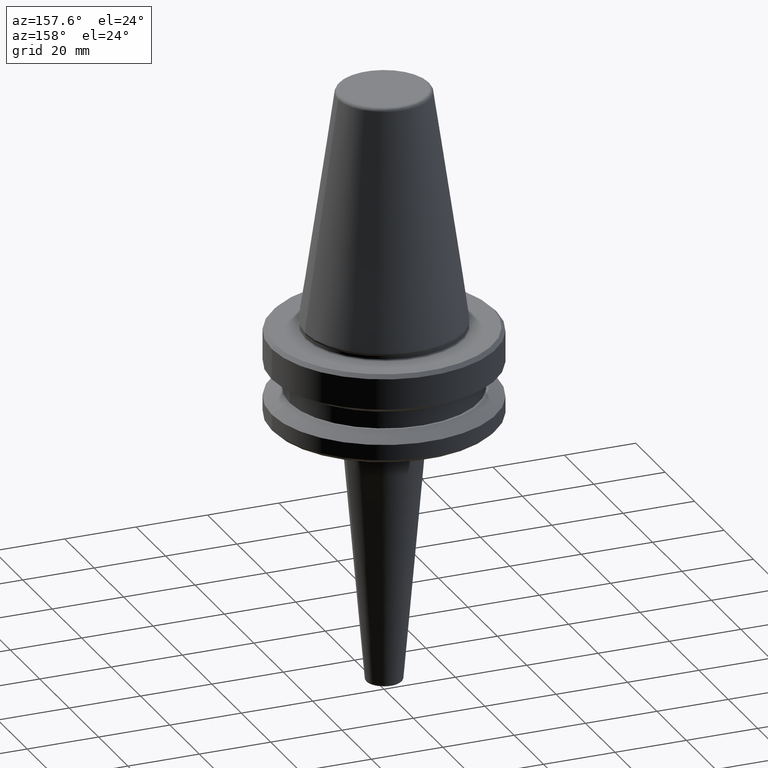
[diagram: clean part render]
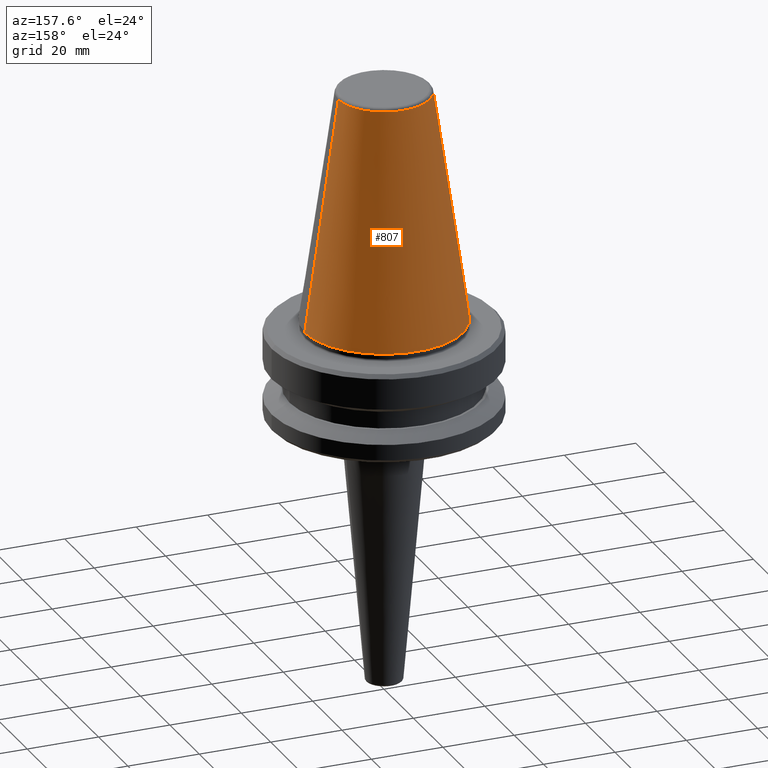
[diagram: same view with one face highlighted and labeled with its STEP entity id]
A machine part, auxiliary view. The second image highlights one B-rep face of the part: STEP entity #807.
In plain terms, the highlighted conical surface has half-angle 8.297 deg.
Its self-contained STEP definition (entity closure, byte-faithful):
#95 = CARTESIAN_POINT ( 'NONE',  ( -12.81220206925736900, 0.0000000000000000000, -0.8556918111122247000 ) ) ;
#120 = CARTESIAN_POINT ( 'NONE',  ( 0.0000000000000000000, 0.0000000000000000000, -0.8556918111122247000 ) ) ;
#169 = ORIENTED_EDGE ( 'NONE', *, *, #229, .T. ) ;
#174 = FACE_OUTER_BOUND ( 'NONE', #700, .T. ) ;
#182 = VERTEX_POINT ( 'NONE', #806 ) ;
#186 = DIRECTION ( 'NONE',  ( 1.000000000000000000, 0.0000000000000000000, 0.0000000000000000000 ) ) ;
#229 = EDGE_CURVE ( 'NONE', #344, #711, #272, .T. ) ;
#250 = ORIENTED_EDGE ( 'NONE', *, *, #346, .F. ) ;
#272 = LINE ( 'NONE', #418, #476 ) ;
#294 = DIRECTION ( 'NONE',  ( -0.0000000000000000000, -0.0000000000000000000, 1.000000000000000000 ) ) ;
#317 = ORIENTED_EDGE ( 'NONE', *, *, #816, .F. ) ;
#344 = VERTEX_POINT ( 'NONE', #370 ) ;
#346 = EDGE_CURVE ( 'NONE', #344, #659, #483, .T. ) ;
#370 = CARTESIAN_POINT ( 'NONE',  ( 12.81220206925736900, 2.145409868259749100E-015, -0.8556918111122247000 ) ) ;
#395 = AXIS2_PLACEMENT_3D ( 'NONE', #765, #294, #850 ) ;
#405 = AXIS2_PLACEMENT_3D ( 'NONE', #789, #616, #703 ) ;
#418 = CARTESIAN_POINT ( 'NONE',  ( 12.81220206925736900, 1.569042225414513200E-015, -0.8556918111122247000 ) ) ;
#476 = VECTOR ( 'NONE', #506, 1000.000000000000000 ) ;
#483 = CIRCLE ( 'NONE', #859, 12.81220206925736900 ) ;
#498 = CARTESIAN_POINT ( 'NONE',  ( 22.22499999999993700, 0.0000000000000000000, -65.40000000000057400 ) ) ;
#506 = DIRECTION ( 'NONE',  ( 0.1443081888881795900, 1.767265616126607700E-017, -0.9895327920891826600 ) ) ;
#543 = DIRECTION ( 'NONE',  ( -0.1443081888881795900, 0.0000000000000000000, -0.9895327920891826600 ) ) ;
#564 = VECTOR ( 'NONE', #543, 1000.000000000000000 ) ;
#594 = ORIENTED_EDGE ( 'NONE', *, *, #1019, .T. ) ;
#616 = DIRECTION ( 'NONE',  ( 0.0000000000000000000, 0.0000000000000000000, -1.000000000000000000 ) ) ;
#619 = CARTESIAN_POINT ( 'NONE',  ( -12.81220206925736900, 0.0000000000000000000, -0.8556918111122247000 ) ) ;
#659 = VERTEX_POINT ( 'NONE', #95 ) ;
#661 = DIRECTION ( 'NONE',  ( -0.0000000000000000000, -0.0000000000000000000, 1.000000000000000000 ) ) ;
#700 = EDGE_LOOP ( 'NONE', ( #250, #169, #594, #317 ) ) ;
#703 = DIRECTION ( 'NONE',  ( -1.000000000000000000, 0.0000000000000000000, 0.0000000000000000000 ) ) ;
#711 = VERTEX_POINT ( 'NONE', #498 ) ;
#754 = CONICAL_SURFACE ( 'NONE', #405, 12.81220206925736900, 0.1448138077623198300 ) ;
#765 = CARTESIAN_POINT ( 'NONE',  ( 0.0000000000000000000, 0.0000000000000000000, -65.40000000000057400 ) ) ;
#789 = CARTESIAN_POINT ( 'NONE',  ( 0.0000000000000000000, 0.0000000000000000000, -0.8556918111122247000 ) ) ;
#801 = CIRCLE ( 'NONE', #395, 22.22499999999993700 ) ;
#806 = CARTESIAN_POINT ( 'NONE',  ( -22.22499999999993700, 2.721777511104985000E-015, -65.40000000000057400 ) ) ;
#807 = ADVANCED_FACE ( 'NONE', ( #174 ), #754, .T. ) ;
#816 = EDGE_CURVE ( 'NONE', #659, #182, #1010, .T. ) ;
#850 = DIRECTION ( 'NONE',  ( 1.000000000000000000, 0.0000000000000000000, 0.0000000000000000000 ) ) ;
#859 = AXIS2_PLACEMENT_3D ( 'NONE', #120, #661, #186 ) ;
#1010 = LINE ( 'NONE', #619, #564 ) ;
#1019 = EDGE_CURVE ( 'NONE', #711, #182, #801, .T. ) ;